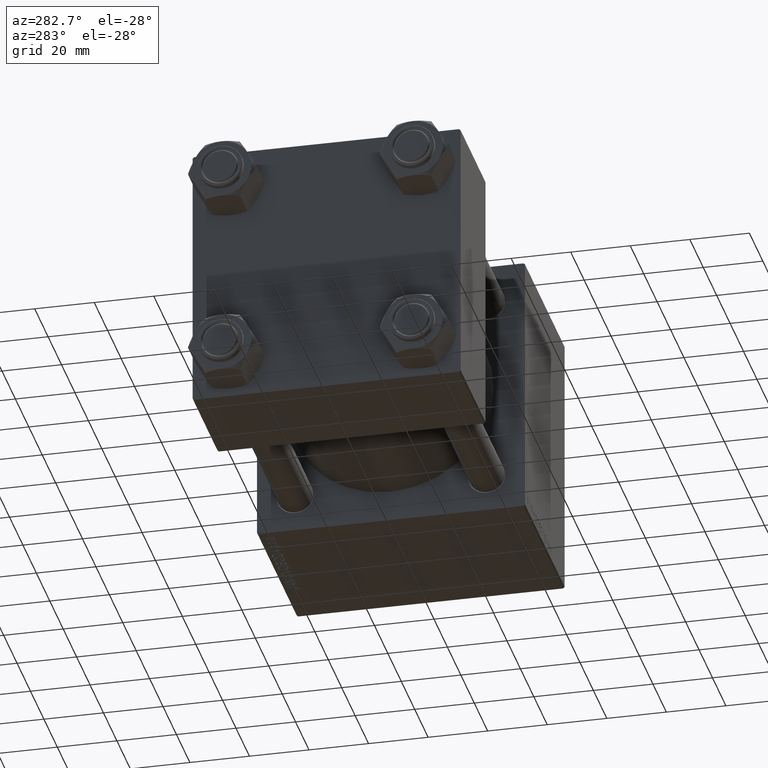
[diagram: clean part render]
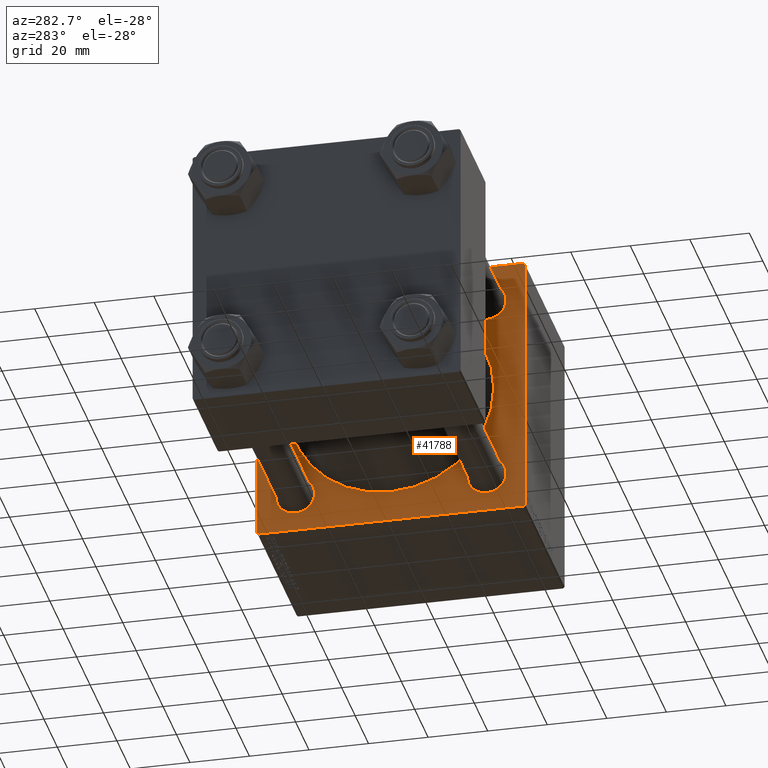
[diagram: same view with one face highlighted and labeled with its STEP entity id]
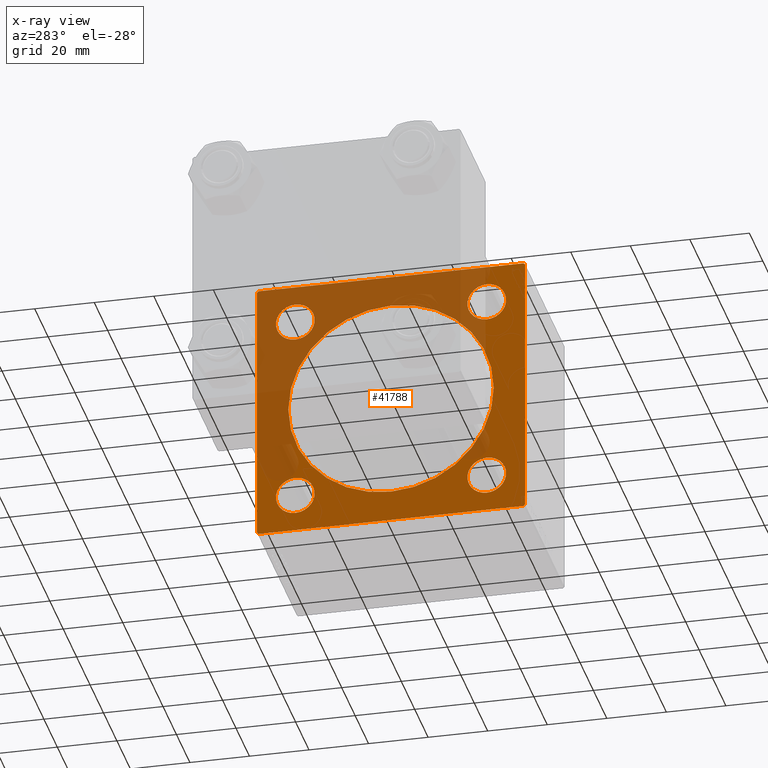
[diagram: x-ray of the same camera — body ghosted, the highlighted face saturated]
A machine part, auxiliary view. The second image highlights one B-rep face of the part: STEP entity #41788.
The next image is the same camera in x-ray: the body ghosted, the highlighted face saturated — about 46% of this face is hidden behind the body in this view.
In plain terms, the highlighted planar face has unit normal (-1, 0, 0).
Its self-contained STEP definition (entity closure, byte-faithful):
#452 = EDGE_CURVE ( 'NONE', #28358, #28109, #36108, .T. ) ;
#503 = VERTEX_POINT ( 'NONE', #44219 ) ;
#541 = CIRCLE ( 'NONE', #28928, 6.500000000000019540 ) ;
#587 = LINE ( 'NONE', #27012, #5325 ) ;
#622 = LINE ( 'NONE', #15626, #4039 ) ;
#690 = CIRCLE ( 'NONE', #45276, 6.500000000000019540 ) ;
#1393 = ORIENTED_EDGE ( 'NONE', *, *, #6667, .T. ) ;
#1411 = VERTEX_POINT ( 'NONE', #42480 ) ;
#1443 = VERTEX_POINT ( 'NONE', #3895 ) ;
#1559 = CIRCLE ( 'NONE', #8056, 6.500000000000019540 ) ;
#1696 = CARTESIAN_POINT ( 'NONE',  ( 96.00000000000000000, 32.14999999999999147, -32.14999999999999858 ) ) ;
#2113 = CARTESIAN_POINT ( 'NONE',  ( 96.00000000000000000, 32.14999999999999147, 32.14999999999999858 ) ) ;
#2300 = VECTOR ( 'NONE', #49906, 1000.000000000000000 ) ;
#2306 = EDGE_CURVE ( 'NONE', #1443, #41247, #33082, .T. ) ;
#2889 = FACE_BOUND ( 'NONE', #43974, .T. ) ;
#3192 = DIRECTION ( 'NONE',  ( 0.000000000000000000, 0.000000000000000000, 1.000000000000000000 ) ) ;
#3740 = EDGE_CURVE ( 'NONE', #38251, #1411, #4182, .T. ) ;
#3895 = CARTESIAN_POINT ( 'NONE',  ( 96.00000000000000000, 32.14999999999999147, 25.64999999999998437 ) ) ;
#4039 = VECTOR ( 'NONE', #22996, 1000.000000000000114 ) ;
#4152 = CARTESIAN_POINT ( 'NONE',  ( 96.00000000000000000, -32.14999999999997726, -38.65000000000003411 ) ) ;
#4182 = LINE ( 'NONE', #7247, #2300 ) ;
#4460 = ORIENTED_EDGE ( 'NONE', *, *, #19379, .T. ) ;
#4841 = DIRECTION ( 'NONE',  ( 0.000000000000000000, 0.000000000000000000, -1.000000000000000000 ) ) ;
#4870 = CARTESIAN_POINT ( 'NONE',  ( 96.00000000000000000, 32.14999999999999147, 38.65000000000001279 ) ) ;
#4872 = VERTEX_POINT ( 'NONE', #41864 ) ;
#5085 = CARTESIAN_POINT ( 'NONE',  ( 96.00000000000000000, -44.50000000000002842, -45.00000000000000000 ) ) ;
#5325 = VECTOR ( 'NONE', #34887, 1000.000000000000000 ) ;
#5332 = AXIS2_PLACEMENT_3D ( 'NONE', #37733, #14630, #3192 ) ;
#5639 = ORIENTED_EDGE ( 'NONE', *, *, #29604, .T. ) ;
#6135 = CIRCLE ( 'NONE', #5332, 6.500000000000012434 ) ;
#6232 = CARTESIAN_POINT ( 'NONE',  ( 96.00000000000000000, 45.00000000000000000, 44.50000000000004263 ) ) ;
#6348 = CARTESIAN_POINT ( 'NONE',  ( 96.00000000000000000, -2.602085213965210642E-15, 34.50000000000000000 ) ) ;
#6667 = EDGE_CURVE ( 'NONE', #22366, #6897, #39132, .T. ) ;
#6897 = VERTEX_POINT ( 'NONE', #42071 ) ;
#7131 = EDGE_CURVE ( 'NONE', #23450, #503, #1559, .T. ) ;
#7166 = CARTESIAN_POINT ( 'NONE',  ( 96.00000000000000000, -2.602085213965210642E-15, 0.000000000000000000 ) ) ;
#7247 = CARTESIAN_POINT ( 'NONE',  ( 96.00000000000000000, 45.00000000000000000, 45.00000000000001421 ) ) ;
#7428 = DIRECTION ( 'NONE',  ( 1.000000000000000000, -0.000000000000000000, 0.000000000000000000 ) ) ;
#7646 = EDGE_LOOP ( 'NONE', ( #23434, #21295 ) ) ;
#7966 = EDGE_CURVE ( 'NONE', #38251, #22366, #622, .T. ) ;
#8046 = AXIS2_PLACEMENT_3D ( 'NONE', #23168, #49584, #14807 ) ;
#8056 = AXIS2_PLACEMENT_3D ( 'NONE', #23173, #7428, #45521 ) ;
#8134 = EDGE_CURVE ( 'NONE', #18234, #18078, #690, .T. ) ;
#9030 = AXIS2_PLACEMENT_3D ( 'NONE', #37680, #29559, #44786 ) ;
#9562 = DIRECTION ( 'NONE',  ( 1.000000000000000000, -0.000000000000000000, 0.000000000000000000 ) ) ;
#10252 = PLANE ( 'NONE',  #9030 ) ;
#10370 = CARTESIAN_POINT ( 'NONE',  ( 96.00000000000000000, 32.14999999999999147, -38.65000000000001990 ) ) ;
#10505 = DIRECTION ( 'NONE',  ( 0.000000000000000000, 0.000000000000000000, -1.000000000000000000 ) ) ;
#10904 = EDGE_CURVE ( 'NONE', #6897, #43237, #19963, .T. ) ;
#10928 = CARTESIAN_POINT ( 'NONE',  ( 96.00000000000000000, 32.14999999999999147, -25.64999999999997726 ) ) ;
#11400 = ORIENTED_EDGE ( 'NONE', *, *, #26845, .T. ) ;
#11410 = DIRECTION ( 'NONE',  ( 1.000000000000000000, -0.000000000000000000, 0.000000000000000000 ) ) ;
#11740 = ORIENTED_EDGE ( 'NONE', *, *, #7966, .T. ) ;
#12180 = ORIENTED_EDGE ( 'NONE', *, *, #2306, .T. ) ;
#12346 = DIRECTION ( 'NONE',  ( -0.000000000000000000, -0.7071067811865474617, -0.7071067811865474617 ) ) ;
#12836 = EDGE_CURVE ( 'NONE', #48901, #32757, #14018, .T. ) ;
#13215 = ORIENTED_EDGE ( 'NONE', *, *, #24093, .T. ) ;
#14012 = DIRECTION ( 'NONE',  ( 0.000000000000000000, 0.000000000000000000, 1.000000000000000000 ) ) ;
#14018 = CIRCLE ( 'NONE', #34286, 6.500000000000019540 ) ;
#14287 = CARTESIAN_POINT ( 'NONE',  ( 96.00000000000000000, -45.00000000000000000, -44.50000000000002842 ) ) ;
#14331 = FACE_BOUND ( 'NONE', #19453, .T. ) ;
#14630 = DIRECTION ( 'NONE',  ( 1.000000000000000000, -0.000000000000000000, 0.000000000000000000 ) ) ;
#14807 = DIRECTION ( 'NONE',  ( 0.000000000000000000, 0.000000000000000000, 1.000000000000000000 ) ) ;
#15093 = AXIS2_PLACEMENT_3D ( 'NONE', #7166, #22654, #30522 ) ;
#15626 = CARTESIAN_POINT ( 'NONE',  ( 96.00000000000000000, 44.75000000000001421, 44.75000000000001421 ) ) ;
#15738 = DIRECTION ( 'NONE',  ( 0.000000000000000000, 0.000000000000000000, 1.000000000000000000 ) ) ;
#16238 = CARTESIAN_POINT ( 'NONE',  ( 96.00000000000000000, -2.602085213965210642E-15, 0.000000000000000000 ) ) ;
#17452 = EDGE_LOOP ( 'NONE', ( #33561, #17761 ) ) ;
#17761 = ORIENTED_EDGE ( 'NONE', *, *, #36411, .T. ) ;
#18078 = VERTEX_POINT ( 'NONE', #10928 ) ;
#18234 = VERTEX_POINT ( 'NONE', #10370 ) ;
#19379 = EDGE_CURVE ( 'NONE', #38109, #20507, #48984, .T. ) ;
#19453 = EDGE_LOOP ( 'NONE', ( #13215, #12180 ) ) ;
#19568 = DIRECTION ( 'NONE',  ( 1.000000000000000000, -0.000000000000000000, 0.000000000000000000 ) ) ;
#19878 = CARTESIAN_POINT ( 'NONE',  ( 96.00000000000000000, -44.75000000000002132, -44.75000000000002132 ) ) ;
#19963 = LINE ( 'NONE', #35458, #36621 ) ;
#19984 = VECTOR ( 'NONE', #10505, 1000.000000000000000 ) ;
#20030 = VECTOR ( 'NONE', #35367, 1000.000000000000114 ) ;
#20507 = VERTEX_POINT ( 'NONE', #22250 ) ;
#21179 = FACE_BOUND ( 'NONE', #7646, .T. ) ;
#21251 = DIRECTION ( 'NONE',  ( 0.000000000000000000, 0.000000000000000000, 1.000000000000000000 ) ) ;
#21295 = ORIENTED_EDGE ( 'NONE', *, *, #7131, .T. ) ;
#22195 = FACE_OUTER_BOUND ( 'NONE', #37254, .T. ) ;
#22250 = CARTESIAN_POINT ( 'NONE',  ( 96.00000000000000000, 1.622946243093158675E-15, -34.50000000000000000 ) ) ;
#22366 = VERTEX_POINT ( 'NONE', #6232 ) ;
#22654 = DIRECTION ( 'NONE',  ( 1.000000000000000000, 0.000000000000000000, 0.000000000000000000 ) ) ;
#22996 = DIRECTION ( 'NONE',  ( 0.000000000000000000, 0.7071067811865474617, -0.7071067811865474617 ) ) ;
#23168 = CARTESIAN_POINT ( 'NONE',  ( 96.00000000000000000, -32.14999999999997726, 32.15000000000000568 ) ) ;
#23173 = CARTESIAN_POINT ( 'NONE',  ( 96.00000000000000000, -32.14999999999997726, 32.15000000000000568 ) ) ;
#23434 = ORIENTED_EDGE ( 'NONE', *, *, #37173, .T. ) ;
#23450 = VERTEX_POINT ( 'NONE', #24726 ) ;
#24093 = EDGE_CURVE ( 'NONE', #41247, #1443, #6135, .T. ) ;
#24726 = CARTESIAN_POINT ( 'NONE',  ( 96.00000000000000000, -32.14999999999997726, 25.64999999999998437 ) ) ;
#24908 = CARTESIAN_POINT ( 'NONE',  ( 96.00000000000000000, -32.14999999999997726, -25.64999999999998437 ) ) ;
#24943 = ORIENTED_EDGE ( 'NONE', *, *, #27879, .T. ) ;
#25083 = EDGE_CURVE ( 'NONE', #4872, #28109, #45296, .T. ) ;
#25196 = ORIENTED_EDGE ( 'NONE', *, *, #3740, .F. ) ;
#25645 = CIRCLE ( 'NONE', #15093, 34.50000000000000000 ) ;
#26254 = CARTESIAN_POINT ( 'NONE',  ( 96.00000000000000000, -45.00000000000000000, 45.00000000000000000 ) ) ;
#26845 = EDGE_CURVE ( 'NONE', #18078, #18234, #541, .T. ) ;
#27012 = CARTESIAN_POINT ( 'NONE',  ( 96.00000000000000000, 45.00000000000000000, -44.99999999999998579 ) ) ;
#27166 = DIRECTION ( 'NONE',  ( 1.000000000000000000, 0.000000000000000000, 0.000000000000000000 ) ) ;
#27879 = EDGE_CURVE ( 'NONE', #43237, #28358, #587, .T. ) ;
#28109 = VERTEX_POINT ( 'NONE', #14287 ) ;
#28200 = CARTESIAN_POINT ( 'NONE',  ( 96.00000000000000000, 45.00000000000000000, 45.00000000000001421 ) ) ;
#28358 = VERTEX_POINT ( 'NONE', #5085 ) ;
#28420 = DIRECTION ( 'NONE',  ( 0.000000000000000000, 0.000000000000000000, 1.000000000000000000 ) ) ;
#28928 = AXIS2_PLACEMENT_3D ( 'NONE', #1696, #9562, #21251 ) ;
#29084 = EDGE_CURVE ( 'NONE', #20507, #38109, #25645, .T. ) ;
#29559 = DIRECTION ( 'NONE',  ( -1.000000000000000000, 0.000000000000000000, -0.000000000000000000 ) ) ;
#29604 = EDGE_CURVE ( 'NONE', #4872, #1411, #48142, .T. ) ;
#30522 = DIRECTION ( 'NONE',  ( 0.000000000000000000, 0.000000000000000000, -1.000000000000000000 ) ) ;
#30710 = CIRCLE ( 'NONE', #34775, 6.500000000000019540 ) ;
#30765 = ORIENTED_EDGE ( 'NONE', *, *, #10904, .T. ) ;
#32757 = VERTEX_POINT ( 'NONE', #4152 ) ;
#33082 = CIRCLE ( 'NONE', #48465, 6.500000000000012434 ) ;
#33305 = CARTESIAN_POINT ( 'NONE',  ( 96.00000000000000000, 32.14999999999999147, -32.14999999999999858 ) ) ;
#33423 = CARTESIAN_POINT ( 'NONE',  ( 96.00000000000000000, -44.75000000000001421, 44.75000000000001421 ) ) ;
#33561 = ORIENTED_EDGE ( 'NONE', *, *, #12836, .T. ) ;
#34127 = EDGE_LOOP ( 'NONE', ( #11400, #43882 ) ) ;
#34286 = AXIS2_PLACEMENT_3D ( 'NONE', #35605, #46520, #35358 ) ;
#34775 = AXIS2_PLACEMENT_3D ( 'NONE', #38856, #19568, #28420 ) ;
#34887 = DIRECTION ( 'NONE',  ( 0.000000000000000000, -1.000000000000000000, -1.541976423090495387E-16 ) ) ;
#35292 = DIRECTION ( 'NONE',  ( 0.000000000000000000, 0.000000000000000000, -1.000000000000000000 ) ) ;
#35358 = DIRECTION ( 'NONE',  ( 0.000000000000000000, 0.000000000000000000, 1.000000000000000000 ) ) ;
#35367 = DIRECTION ( 'NONE',  ( 0.000000000000000000, -0.7071067811865474617, 0.7071067811865474617 ) ) ;
#35373 = ORIENTED_EDGE ( 'NONE', *, *, #452, .T. ) ;
#35458 = CARTESIAN_POINT ( 'NONE',  ( 96.00000000000000000, 44.74999999999999289, -44.74999999999999289 ) ) ;
#35581 = ORIENTED_EDGE ( 'NONE', *, *, #29084, .T. ) ;
#35605 = CARTESIAN_POINT ( 'NONE',  ( 96.00000000000000000, -32.14999999999997726, -32.15000000000000568 ) ) ;
#36108 = LINE ( 'NONE', #19878, #20030 ) ;
#36411 = EDGE_CURVE ( 'NONE', #32757, #48901, #30710, .T. ) ;
#36621 = VECTOR ( 'NONE', #12346, 1000.000000000000114 ) ;
#37173 = EDGE_CURVE ( 'NONE', #503, #23450, #45342, .T. ) ;
#37254 = EDGE_LOOP ( 'NONE', ( #24943, #35373, #46343, #5639, #25196, #11740, #1393, #30765 ) ) ;
#37427 = FACE_BOUND ( 'NONE', #34127, .T. ) ;
#37680 = CARTESIAN_POINT ( 'NONE',  ( 96.00000000000000000, 0.000000000000000000, 0.000000000000000000 ) ) ;
#37733 = CARTESIAN_POINT ( 'NONE',  ( 96.00000000000000000, 32.14999999999999147, 32.14999999999999858 ) ) ;
#38109 = VERTEX_POINT ( 'NONE', #6348 ) ;
#38251 = VERTEX_POINT ( 'NONE', #42870 ) ;
#38856 = CARTESIAN_POINT ( 'NONE',  ( 96.00000000000000000, -32.14999999999997726, -32.15000000000000568 ) ) ;
#39065 = CARTESIAN_POINT ( 'NONE',  ( 96.00000000000000000, 44.50000000000000000, -44.99999999999998579 ) ) ;
#39132 = LINE ( 'NONE', #28200, #48614 ) ;
#41247 = VERTEX_POINT ( 'NONE', #4870 ) ;
#41788 = ADVANCED_FACE ( 'NONE', ( #21179, #14331, #37427, #48342, #2889, #22195 ), #10252, .T. ) ;
#41864 = CARTESIAN_POINT ( 'NONE',  ( 96.00000000000000000, -45.00000000000000000, 44.50000000000002842 ) ) ;
#42071 = CARTESIAN_POINT ( 'NONE',  ( 96.00000000000000000, 45.00000000000000000, -44.49999999999995737 ) ) ;
#42480 = CARTESIAN_POINT ( 'NONE',  ( 96.00000000000000000, -44.50000000000000000, 45.00000000000000000 ) ) ;
#42870 = CARTESIAN_POINT ( 'NONE',  ( 96.00000000000000000, 44.50000000000002842, 45.00000000000001421 ) ) ;
#43237 = VERTEX_POINT ( 'NONE', #39065 ) ;
#43882 = ORIENTED_EDGE ( 'NONE', *, *, #8134, .T. ) ;
#43974 = EDGE_LOOP ( 'NONE', ( #4460, #35581 ) ) ;
#44219 = CARTESIAN_POINT ( 'NONE',  ( 96.00000000000000000, -32.14999999999997726, 38.65000000000002700 ) ) ;
#44580 = DIRECTION ( 'NONE',  ( -0.000000000000000000, 0.7071067811865474617, 0.7071067811865474617 ) ) ;
#44786 = DIRECTION ( 'NONE',  ( -0.000000000000000000, 0.000000000000000000, 1.000000000000000000 ) ) ;
#45276 = AXIS2_PLACEMENT_3D ( 'NONE', #33305, #48782, #14012 ) ;
#45296 = LINE ( 'NONE', #26254, #19984 ) ;
#45342 = CIRCLE ( 'NONE', #8046, 6.500000000000019540 ) ;
#45521 = DIRECTION ( 'NONE',  ( 0.000000000000000000, 0.000000000000000000, 1.000000000000000000 ) ) ;
#45926 = VECTOR ( 'NONE', #44580, 1000.000000000000114 ) ;
#46343 = ORIENTED_EDGE ( 'NONE', *, *, #25083, .F. ) ;
#46520 = DIRECTION ( 'NONE',  ( 1.000000000000000000, -0.000000000000000000, 0.000000000000000000 ) ) ;
#47334 = AXIS2_PLACEMENT_3D ( 'NONE', #16238, #27166, #35292 ) ;
#48142 = LINE ( 'NONE', #33423, #45926 ) ;
#48342 = FACE_BOUND ( 'NONE', #17452, .T. ) ;
#48465 = AXIS2_PLACEMENT_3D ( 'NONE', #2113, #11410, #15738 ) ;
#48614 = VECTOR ( 'NONE', #4841, 1000.000000000000000 ) ;
#48782 = DIRECTION ( 'NONE',  ( 1.000000000000000000, -0.000000000000000000, 0.000000000000000000 ) ) ;
#48901 = VERTEX_POINT ( 'NONE', #24908 ) ;
#48984 = CIRCLE ( 'NONE', #47334, 34.50000000000000000 ) ;
#49584 = DIRECTION ( 'NONE',  ( 1.000000000000000000, -0.000000000000000000, 0.000000000000000000 ) ) ;
#49906 = DIRECTION ( 'NONE',  ( 0.000000000000000000, -1.000000000000000000, -1.541976423090495387E-16 ) ) ;